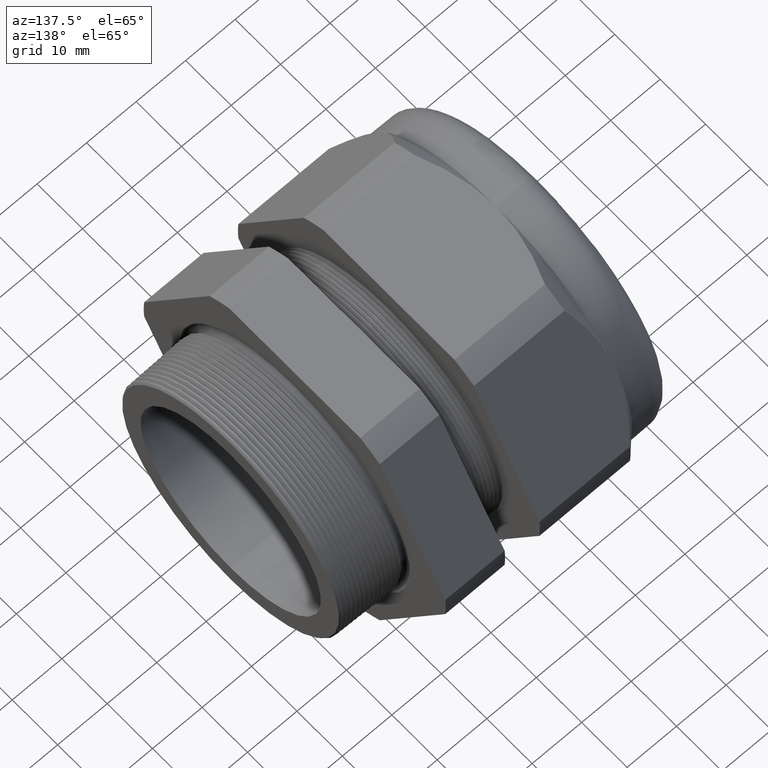
[diagram: clean part render]
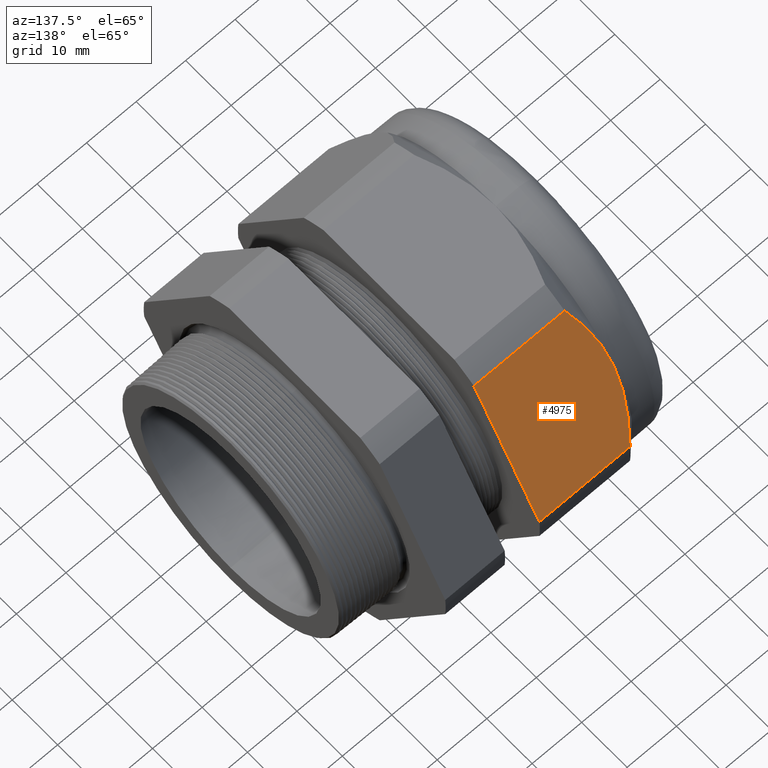
[diagram: same view with one face highlighted and labeled with its STEP entity id]
A machine part, auxiliary view. The second image highlights one B-rep face of the part: STEP entity #4975.
In plain terms, the highlighted planar face has unit normal (0, 0.866, 0.5).
Its self-contained STEP definition (entity closure, byte-faithful):
#2837 = CARTESIAN_POINT ( 'NONE',  ( -1.058802799999999400, 1.306152847968161000, 0.09767690486835764500 ) ) ;
#2844 = DIRECTION ( 'NONE',  ( -1.000000000000000000, 0.0000000000000000000, 0.0000000000000000000 ) ) ;
#2845 = VECTOR ( 'NONE', #2844, 39.37007874015748100 ) ;
#2846 = CARTESIAN_POINT ( 'NONE',  ( 0.2000000000000000400, 1.306152847968161000, 0.09767690486835764500 ) ) ;
#2847 = LINE ( 'NONE', #2846, #2845 ) ;
#2887 = CARTESIAN_POINT ( 'NONE',  ( -1.779492000000000100, 1.306152847968161000, 0.09767690486835771400 ) ) ;
#2906 = DIRECTION ( 'NONE',  ( 0.0000000000000000000, -0.5000000000000000000, 0.8660254037844386000 ) ) ;
#2907 = VECTOR ( 'NONE', #2906, 39.37007874015748900 ) ;
#2908 = CARTESIAN_POINT ( 'NONE',  ( -1.058802799999999400, 1.268159976465637500, 0.1634824886361639900 ) ) ;
#2909 = LINE ( 'NONE', #2908, #2907 ) ;
#2941 = DIRECTION ( 'NONE',  ( -1.000000000000000000, 0.0000000000000000000, 0.0000000000000000000 ) ) ;
#2942 = VECTOR ( 'NONE', #2941, 39.37007874015748100 ) ;
#2943 = CARTESIAN_POINT ( 'NONE',  ( 0.2000000000000000400, 0.7376671049631140500, 1.082323095131642300 ) ) ;
#2944 = LINE ( 'NONE', #2943, #2942 ) ;
#2945 = CARTESIAN_POINT ( 'NONE',  ( -1.779492000000000100, 0.7376671049631140500, 1.082323095131642300 ) ) ;
#2946 = CARTESIAN_POINT ( 'NONE',  ( -1.058802799999999400, 0.7376671049631140500, 1.082323095131642300 ) ) ;
#2962 = B_SPLINE_CURVE_WITH_KNOTS ( 'NONE', 3,
 ( #3014, #3013, #3012, #3011, #3010, #3009, #3008, #3007 ),
 .UNSPECIFIED., .F., .F.,
 ( 4, 2, 2, 4 ),
 ( 0.01482019157634350800, 0.02222508228781095200, 0.02592752764354468200, 0.02962997299927840700 ),
 .UNSPECIFIED. ) ;
#2990 = B_SPLINE_CURVE_WITH_KNOTS ( 'NONE', 3,
 ( #3048, #3047, #3046, #3045, #3044, #3043, #3042, #3041, #3040, #3039 ),
 .UNSPECIFIED., .F., .F.,
 ( 4, 2, 2, 2, 4 ),
 ( 2.483246384254508600E-007, 0.007410219950490964600, 0.01111520576341723000, 0.01296769866988036800, 0.01482019157634350800 ),
 .UNSPECIFIED. ) ;
#3007 = CARTESIAN_POINT ( 'NONE',  ( -1.779492000000000100, 0.7376671049631140500, 1.082323095131642300 ) ) ;
#3008 = CARTESIAN_POINT ( 'NONE',  ( -1.799142024126190400, 0.7603040856765036500, 1.043114694406094300 ) ) ;
#3009 = CARTESIAN_POINT ( 'NONE',  ( -1.817185162014755200, 0.7832802371540397200, 1.003318832684603400 ) ) ;
#3010 = CARTESIAN_POINT ( 'NONE',  ( -1.849171828712719200, 0.8299341694478904500, 0.9225118515787756900 ) ) ;
#3011 = CARTESIAN_POINT ( 'NONE',  ( -1.862989026242972500, 0.8534331075844801000, 0.8818104968022839600 ) ) ;
#3012 = CARTESIAN_POINT ( 'NONE',  ( -1.896875206165112800, 0.9245277886614220500, 0.7586708970291153900 ) ) ;
#3013 = CARTESIAN_POINT ( 'NONE',  ( -1.909291999999998700, 0.9727282558474341600, 0.6751852389143852000 ) ) ;
#3014 = CARTESIAN_POINT ( 'NONE',  ( -1.909291999999999500, 1.021909976465637600, 0.5900000000000000800 ) ) ;
#3039 = CARTESIAN_POINT ( 'NONE',  ( -1.909291999999999500, 1.021909976465637600, 0.5900000000000000800 ) ) ;
#3040 = CARTESIAN_POINT ( 'NONE',  ( -1.909291999999999800, 1.034213843210325600, 0.5686890776686434100 ) ) ;
#3041 = CARTESIAN_POINT ( 'NONE',  ( -1.908513362268124500, 1.046630246888398100, 0.5471832356509362900 ) ) ;
#3042 = CARTESIAN_POINT ( 'NONE',  ( -1.905420772962689700, 1.071299393251977400, 0.5044550207698634800 ) ) ;
#3043 = CARTESIAN_POINT ( 'NONE',  ( -1.903116933607495100, 1.083539571180133200, 0.4832544107046148900 ) ) ;
#3044 = CARTESIAN_POINT ( 'NONE',  ( -1.894069948313096100, 1.119994011135374300, 0.4201134685406686700 ) ) ;
#3045 = CARTESIAN_POINT ( 'NONE',  ( -1.885190669446346700, 1.143942096382617900, 0.3786341681484529100 ) ) ;
#3046 = CARTESIAN_POINT ( 'NONE',  ( -1.851187505985919700, 1.214868581998318000, 0.2557858914597571600 ) ) ;
#3047 = CARTESIAN_POINT ( 'NONE',  ( -1.818743475994756500, 1.260934842160163200, 0.1759967883447546000 ) ) ;
#3048 = CARTESIAN_POINT ( 'NONE',  ( -1.779492000000000100, 1.306152847968161000, 0.09767690486835771400 ) ) ;
#3052 = DIRECTION ( 'NONE',  ( 0.0000000000000000000, -0.5000000000000000000, 0.8660254037844386000 ) ) ;
#3053 = DIRECTION ( 'NONE',  ( 0.0000000000000000000, 0.8660254037844387100, 0.5000000000000001100 ) ) ;
#3054 = CARTESIAN_POINT ( 'NONE',  ( 0.2000000000000000400, 0.7376671049631140500, 1.082323095131642300 ) ) ;
#3055 = AXIS2_PLACEMENT_3D ( 'NONE', #3054, #3053, #3052 ) ;
#3056 = PLANE ( 'NONE',  #3055 ) ;
#3058 = FACE_OUTER_BOUND ( 'NONE', #4953, .T. ) ;
#3315 = CARTESIAN_POINT ( 'NONE',  ( -1.909291999999999500, 1.021909976465637600, 0.5900000000000000800 ) ) ;
#4861 = EDGE_CURVE ( 'NONE', #4864, #4869, #2847, .T. ) ;
#4864 = VERTEX_POINT ( 'NONE', #2837 ) ;
#4869 = VERTEX_POINT ( 'NONE', #2887 ) ;
#4886 = ORIENTED_EDGE ( 'NONE', *, *, #4895, .F. ) ;
#4895 = EDGE_CURVE ( 'NONE', #4864, #4908, #2909, .T. ) ;
#4908 = VERTEX_POINT ( 'NONE', #2946 ) ;
#4909 = ORIENTED_EDGE ( 'NONE', *, *, #4911, .F. ) ;
#4910 = VERTEX_POINT ( 'NONE', #2945 ) ;
#4911 = EDGE_CURVE ( 'NONE', #4908, #4910, #2944, .T. ) ;
#4936 = EDGE_CURVE ( 'NONE', #5122, #4910, #2962, .T. ) ;
#4941 = EDGE_CURVE ( 'NONE', #4869, #5122, #2990, .T. ) ;
#4945 = ORIENTED_EDGE ( 'NONE', *, *, #4941, .T. ) ;
#4947 = ORIENTED_EDGE ( 'NONE', *, *, #4936, .T. ) ;
#4950 = ORIENTED_EDGE ( 'NONE', *, *, #4861, .T. ) ;
#4953 = EDGE_LOOP ( 'NONE', ( #4950, #4945, #4947, #4909, #4886 ) ) ;
#4975 = ADVANCED_FACE ( 'NONE', ( #3058 ), #3056, .T. ) ;
#5122 = VERTEX_POINT ( 'NONE', #3315 ) ;